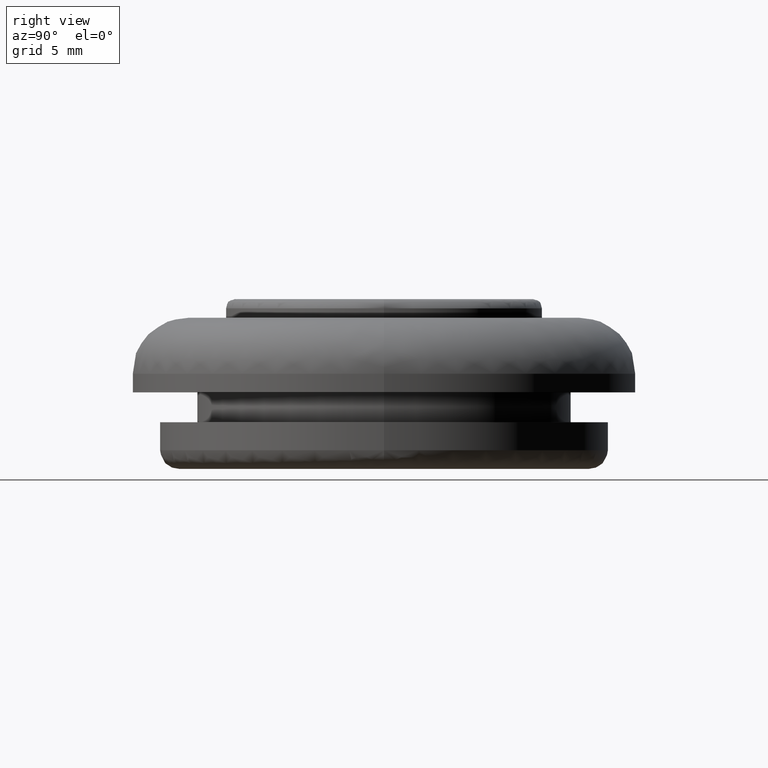
[diagram: clean part render]
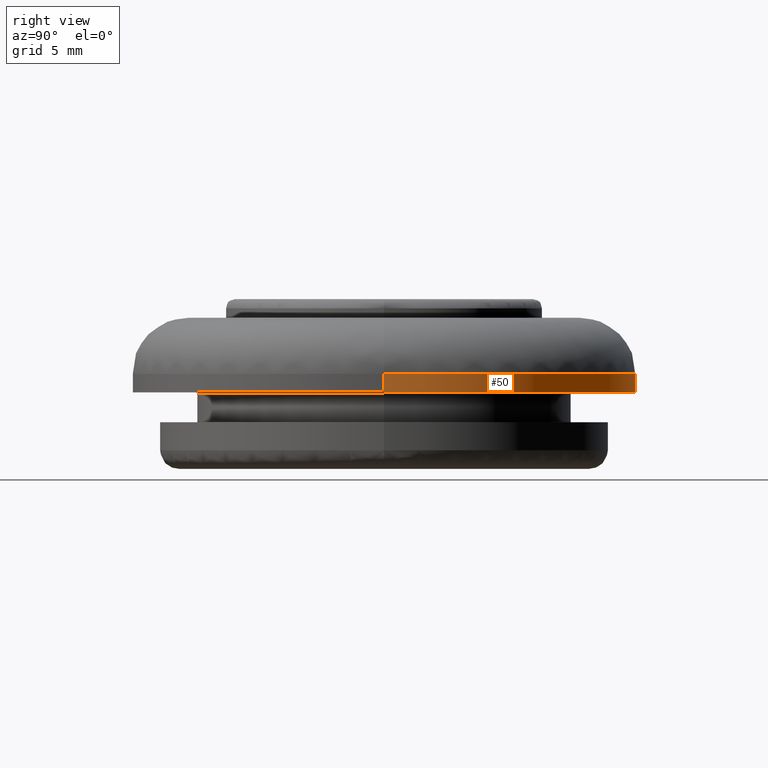
[diagram: same view with one face highlighted and labeled with its STEP entity id]
A machine part, right view. The second image highlights one B-rep face of the part: STEP entity #50.
In plain terms, the highlighted cylindrical surface (partial cylindrical patch) has radius 13.5 mm, axis along (-0, -0, -1).
Its self-contained STEP definition (entity closure, byte-faithful):
#50=ADVANCED_FACE('',(#169),#168,.T.);
#168=CYLINDRICAL_SURFACE('',#365,1.35000000000E+001);
#169=FACE_OUTER_BOUND('',#366,.T.);
#362=CARTESIAN_POINT('',(2.76778069758E+002,0.00000000000E+000,2.68237976074E+002));
#363=DIRECTION('',(-0.00000000000E+000,-0.00000000000E+000,-1.00000000000E+000));
#364=DIRECTION('',(-1.00000000000E+000,-0.00000000000E+000,-0.00000000000E+000));
#365=AXIS2_PLACEMENT_3D('',#362,#363,#364);
#366=EDGE_LOOP('',(#594,#595,#596,#597));
#594=ORIENTED_EDGE('',*,*,#663,.F.);
#595=ORIENTED_EDGE('',*,*,#676,.F.);
#596=ORIENTED_EDGE('',*,*,#677,.T.);
#597=ORIENTED_EDGE('',*,*,#678,.T.);
#663=EDGE_CURVE('',#781,#780,#788,.T.);
#676=EDGE_CURVE('',#874,#781,#875,.T.);
#677=EDGE_CURVE('',#874,#881,#882,.T.);
#678=EDGE_CURVE('',#881,#780,#888,.T.);
#780=VERTEX_POINT('',#1060);
#781=VERTEX_POINT('',#1061);
#788=CIRCLE('',#1069,1.35000000000E+001);
#874=VERTEX_POINT('',#1118);
#875=(BOUNDED_CURVE() B_SPLINE_CURVE(1,(#1119,#1120),.UNSPECIFIED.,.F.,.F.) B_SPLINE_CURVE_WITH_KNOTS((2,2),(8.33332935974E-002,9.16666633252E-001),.UNSPECIFIED.) CURVE() GEOMETRIC_REPRESENTATION_ITEM() RATIONAL_B_SPLINE_CURVE((1.00000000000E+000,1.00000000000E+000)) REPRESENTATION_ITEM('') );
#881=VERTEX_POINT('',#1121);
#882=CIRCLE('',#1125,1.35000000000E+001);
#888=(BOUNDED_CURVE() B_SPLINE_CURVE(1,(#1126,#1127),.UNSPECIFIED.,.F.,.F.) B_SPLINE_CURVE_WITH_KNOTS((2,2),(8.33333333334E-002,9.16666666667E-001),.UNSPECIFIED.) CURVE() GEOMETRIC_REPRESENTATION_ITEM() RATIONAL_B_SPLINE_CURVE((7.50000000000E-001,7.50000000000E-001)) REPRESENTATION_ITEM('') );
#1060=CARTESIAN_POINT('',(2.90278069758E+002,-2.83228030872E-014,2.67737988893E+002));
#1061=CARTESIAN_POINT('',(2.63278069758E+002,2.54611146981E-014,2.67737988893E+002));
#1066=CARTESIAN_POINT('',(2.76778069758E+002,0.00000000000E+000,2.67737988893E+002));
#1067=DIRECTION('',(0.00000000000E+000,0.00000000000E+000,-1.00000000000E+000));
#1068=DIRECTION('',(1.00000000000E+000,-1.77635683940E-015,-0.00000000000E+000));
#1069=AXIS2_PLACEMENT_3D('',#1066,#1067,#1068);
#1118=CARTESIAN_POINT('',(2.63278069758E+002,-1.77635683940E-015,2.68737988893E+002));
#1119=CARTESIAN_POINT('',(2.63278069758E+002,0.00000000000E+000,2.68737988941E+002));
#1120=CARTESIAN_POINT('',(2.63278069758E+002,0.00000000000E+000,2.67737988933E+002));
#1121=CARTESIAN_POINT('',(2.90278069758E+002,-2.83228030872E-014,2.68737988893E+002));
#1122=CARTESIAN_POINT('',(2.76778069758E+002,0.00000000000E+000,2.68737988893E+002));
#1123=DIRECTION('',(0.00000000000E+000,0.00000000000E+000,-1.00000000000E+000));
#1124=DIRECTION('',(1.00000000000E+000,-1.77635683940E-015,-0.00000000000E+000));
#1125=AXIS2_PLACEMENT_3D('',#1122,#1123,#1124);
#1126=CARTESIAN_POINT('',(2.90278069758E+002,-5.92118946467E-016,2.68737988893E+002));
#1127=CARTESIAN_POINT('',(2.90278069758E+002,-5.92118946467E-016,2.67737988893E+002));